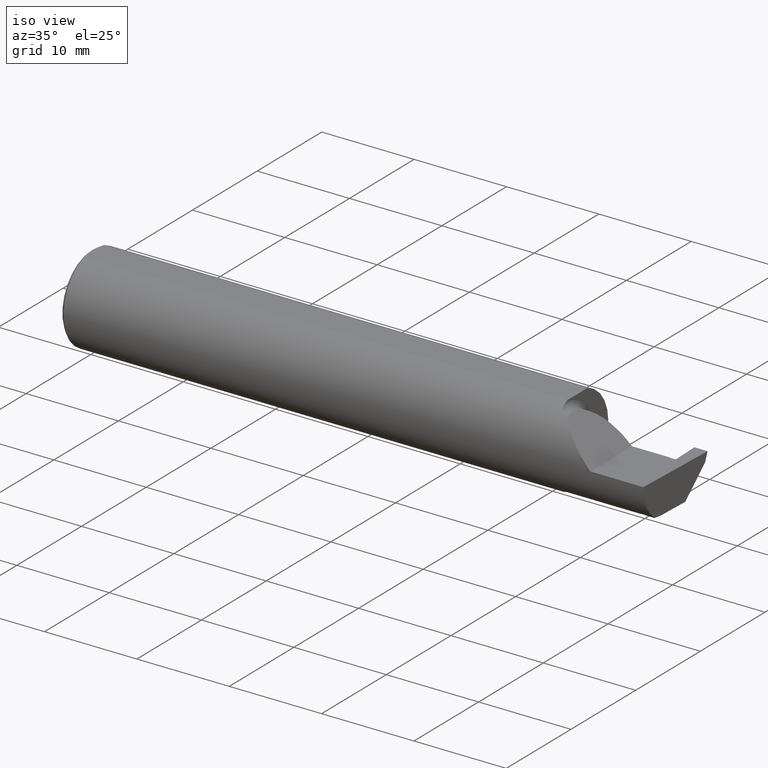
[diagram: clean part render]
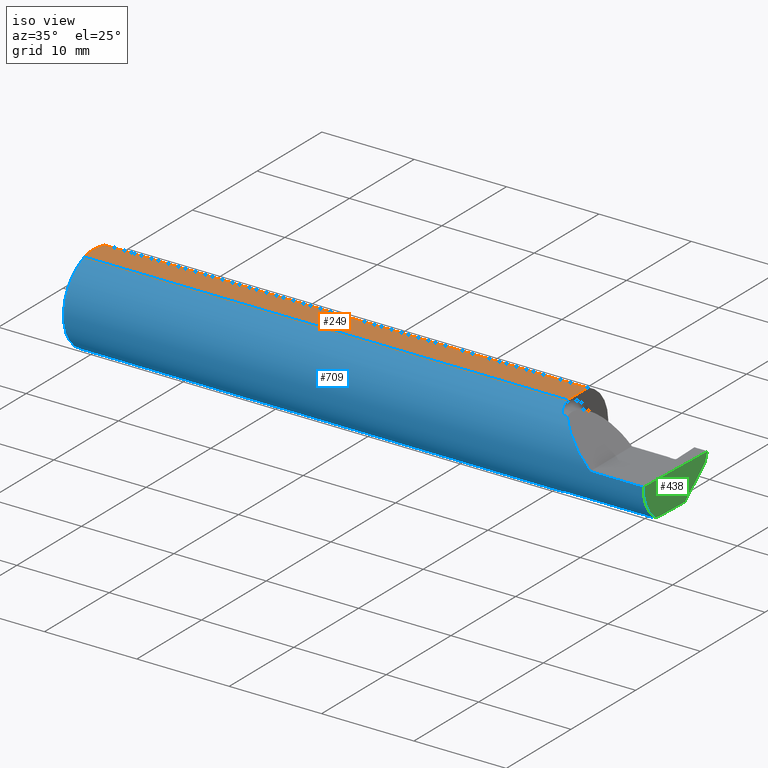
[diagram: same view with three faces highlighted in distinct colors, each labeled with its STEP entity id]
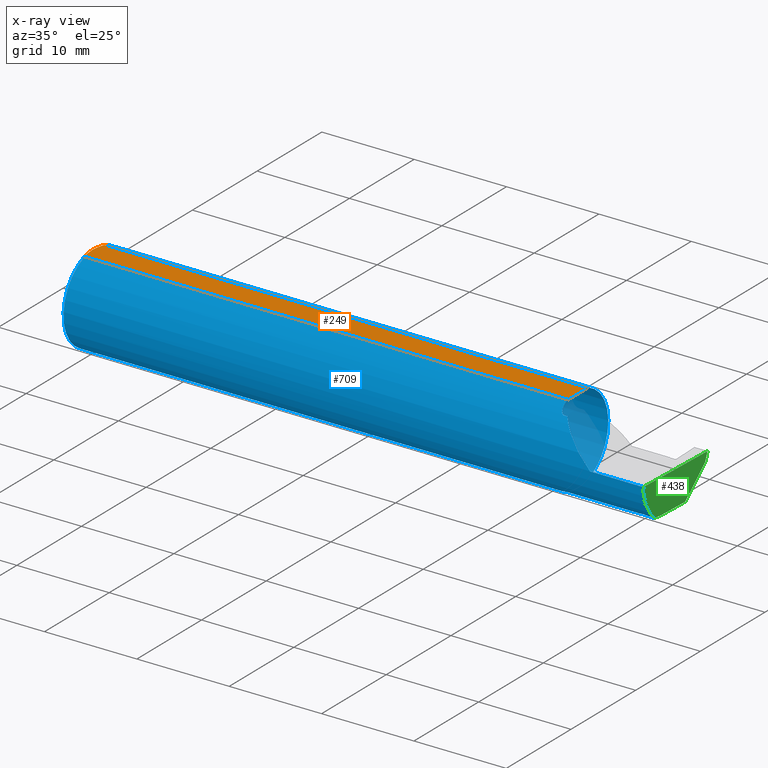
[diagram: x-ray of the same camera — body ghosted, the three highlighted faces saturated]
A machine part, iso view with three faces highlighted in distinct colors.
The next image is the same camera in x-ray (body ghosted, the three faces saturated) — at least one of them is partly hidden behind the body in this view.
Their STEP definitions:

[orange] entity #249 — the highlighted planar face has unit normal (0, -0, 1).
#20 = CARTESIAN_POINT ( 'NONE',  ( 2.075000000000000178, -0.1873500000000000165, 0.1773499999999999799 ) ) ;
#25 = CARTESIAN_POINT ( 'NONE',  ( 0.01186375298701897348, -0.05066077215909271098, 0.1773499999999999799 ) ) ;
#26 = PLANE ( 'NONE',  #677 ) ;
#59 = VERTEX_POINT ( 'NONE', #618 ) ;
#86 = ORIENTED_EDGE ( 'NONE', *, *, #107, .T. ) ;
#107 = EDGE_CURVE ( 'NONE', #681, #172, #858, .T. ) ;
#111 = DIRECTION ( 'NONE',  ( -0.000000000000000000, 1.000000000000000000, 0.000000000000000000 ) ) ;
#151 = CARTESIAN_POINT ( 'NONE',  ( 2.075000000000000178, -0.06039039658753699025, 0.1773499999999999799 ) ) ;
#167 = CARTESIAN_POINT ( 'NONE',  ( 0.01499999999999999944, -0.06039039658753697637, 0.1773499999999999799 ) ) ;
#172 = VERTEX_POINT ( 'NONE', #151 ) ;
#175 = DIRECTION ( 'NONE',  ( -1.000000000000000000, -0.000000000000000000, -0.000000000000000000 ) ) ;
#207 = DIRECTION ( 'NONE',  ( 1.000000000000000000, 0.000000000000000000, -0.000000000000000000 ) ) ;
#217 = CARTESIAN_POINT ( 'NONE',  ( 0.000000000000000000, -0.06039039658753697637, 0.1773499999999999799 ) ) ;
#226 = EDGE_CURVE ( 'NONE', #59, #420, #273, .T. ) ;
#249 = ADVANCED_FACE ( 'NONE', ( #908 ), #26, .T. ) ;
#262 = VECTOR ( 'NONE', #779, 39.37007874015748143 ) ;
#266 = CARTESIAN_POINT ( 'NONE',  ( 0.009318557230853204490, -0.04061090184993776386, 0.1773499999999999799 ) ) ;
#273 = B_SPLINE_CURVE_WITH_KNOTS ( 'NONE', 3,
 ( #977, #898, #743, #984, #913, #987 ),
 .UNSPECIFIED., .F., .F.,
 ( 4, 2, 4 ),
 ( 0.004207325536406422359, 0.004979129323161655095, 0.005750933109916887831 ),
 .UNSPECIFIED. ) ;
#344 = CARTESIAN_POINT ( 'NONE',  ( 0.005896899252109314912, -0.02043863390046160924, 0.1773500000000000354 ) ) ;
#350 = CARTESIAN_POINT ( 'NONE',  ( 0.01499999999999999944, -0.06039039658753697637, 0.1773499999999999799 ) ) ;
#420 = VERTEX_POINT ( 'NONE', #559 ) ;
#422 = CARTESIAN_POINT ( 'NONE',  ( 0.004999999999999835305, 2.941982542510190671E-17, 0.1773499999999999799 ) ) ;
#428 = B_SPLINE_CURVE_WITH_KNOTS ( 'NONE', 3,
 ( #422, #735, #344, #266, #25, #350 ),
 .UNSPECIFIED., .F., .F.,
 ( 4, 2, 4 ),
 ( 0.005750933109916887831, 0.006521788775031543001, 0.007292644440146199038 ),
 .UNSPECIFIED. ) ;
#429 = LINE ( 'NONE', #20, #479 ) ;
#435 = DIRECTION ( 'NONE',  ( 0.000000000000000000, -0.000000000000000000, 1.000000000000000000 ) ) ;
#469 = EDGE_CURVE ( 'NONE', #862, #59, #732, .T. ) ;
#479 = VECTOR ( 'NONE', #111, 39.37007874015748143 ) ;
#528 = EDGE_CURVE ( 'NONE', #172, #862, #429, .T. ) ;
#545 = EDGE_CURVE ( 'NONE', #420, #681, #428, .T. ) ;
#559 = CARTESIAN_POINT ( 'NONE',  ( 0.004999999999999835305, 2.941982542510190671E-17, 0.1773499999999999799 ) ) ;
#599 = ORIENTED_EDGE ( 'NONE', *, *, #469, .T. ) ;
#618 = CARTESIAN_POINT ( 'NONE',  ( 0.01499999999999756042, 0.06039039658754215278, 0.1773499999999999799 ) ) ;
#677 = AXIS2_PLACEMENT_3D ( 'NONE', #828, #435, #207 ) ;
#681 = VERTEX_POINT ( 'NONE', #167 ) ;
#698 = CARTESIAN_POINT ( 'NONE',  ( 2.075000000000000178, 0.06039039658754216666, 0.1773499999999999799 ) ) ;
#732 = LINE ( 'NONE', #976, #964 ) ;
#735 = CARTESIAN_POINT ( 'NONE',  ( 0.004999999999999833571, -0.01026662907944655458, 0.1773499999999999521 ) ) ;
#743 = CARTESIAN_POINT ( 'NONE',  ( 0.009346310357820472939, 0.04072930668827419443, 0.1773500000000000354 ) ) ;
#779 = DIRECTION ( 'NONE',  ( 1.000000000000000000, 0.000000000000000000, 0.000000000000000000 ) ) ;
#828 = CARTESIAN_POINT ( 'NONE',  ( 2.500000000000000000, -0.1873500000000000165, 0.1773499999999999799 ) ) ;
#858 = LINE ( 'NONE', #217, #262 ) ;
#862 = VERTEX_POINT ( 'NONE', #698 ) ;
#898 = CARTESIAN_POINT ( 'NONE',  ( 0.01185291896084217714, 0.05062716160312498437, 0.1773499999999999521 ) ) ;
#908 = FACE_OUTER_BOUND ( 'NONE', #1039, .T. ) ;
#913 = CARTESIAN_POINT ( 'NONE',  ( 0.004999999999999839642, 0.01027925662263861305, 0.1773499999999999799 ) ) ;
#919 = ORIENTED_EDGE ( 'NONE', *, *, #545, .T. ) ;
#953 = ORIENTED_EDGE ( 'NONE', *, *, #528, .T. ) ;
#964 = VECTOR ( 'NONE', #175, 39.37007874015748143 ) ;
#976 = CARTESIAN_POINT ( 'NONE',  ( 0.000000000000000000, 0.06039039658753697637, 0.1773499999999999799 ) ) ;
#977 = CARTESIAN_POINT ( 'NONE',  ( 0.01499999999999756042, 0.06039039658754215278, 0.1773499999999999799 ) ) ;
#984 = CARTESIAN_POINT ( 'NONE',  ( 0.005916828623699125177, 0.02060071390057613763, 0.1773499999999999799 ) ) ;
#985 = ORIENTED_EDGE ( 'NONE', *, *, #226, .T. ) ;
#987 = CARTESIAN_POINT ( 'NONE',  ( 0.004999999999999835305, 2.941982542510190671E-17, 0.1773499999999999799 ) ) ;
#1039 = EDGE_LOOP ( 'NONE', ( #86, #953, #599, #985, #919 ) ) ;

[blue] entity #709 — the highlighted cylindrical surface (partial cylindrical patch) has radius 4.7587 mm, axis along (-1, -0, -0).
#14 = LINE ( 'NONE', #797, #877 ) ;
#15 = CARTESIAN_POINT ( 'NONE',  ( 2.076062863587533780, -0.08334999999998812803, 0.1677879614275171183 ) ) ;
#17 = EDGE_CURVE ( 'NONE', #670, #356, #41, .T. ) ;
#27 = ORIENTED_EDGE ( 'NONE', *, *, #847, .T. ) ;
#28 = EDGE_CURVE ( 'NONE', #172, #521, #196, .T. ) ;
#37 = VECTOR ( 'NONE', #938, 39.37007874015748143 ) ;
#41 = B_SPLINE_CURVE_WITH_KNOTS ( 'NONE', 3,
 ( #68, #225, #684, #146 ),
 .UNSPECIFIED., .F., .F.,
 ( 4, 4 ),
 ( 0.001278539404338873775, 0.001694873732696217669 ),
 .UNSPECIFIED. ) ;
#44 = CARTESIAN_POINT ( 'NONE',  ( 2.086340974786207170, -0.1102890168945986904, -0.1514792188789465255 ) ) ;
#48 = ORIENTED_EDGE ( 'NONE', *, *, #782, .F. ) ;
#51 = CARTESIAN_POINT ( 'NONE',  ( 2.485002117657001186, -0.1623470442677541481, -0.1099340280425338545 ) ) ;
#56 = VERTEX_POINT ( 'NONE', #612 ) ;
#58 = CIRCLE ( 'NONE', #651, 0.1873499999999999888 ) ;
#59 = VERTEX_POINT ( 'NONE', #618 ) ;
#61 = EDGE_CURVE ( 'NONE', #820, #681, #58, .T. ) ;
#64 = CARTESIAN_POINT ( 'NONE',  ( 0.01499999999999999944, 0.000000000000000000, -0.1873499999999999888 ) ) ;
#68 = CARTESIAN_POINT ( 'NONE',  ( 2.076062863587535556, -0.08334999999999985476, -0.1677879614275112896 ) ) ;
#70 = CARTESIAN_POINT ( 'NONE',  ( 2.435367547408618716, -0.1203345206023109792, -0.1435953538642946725 ) ) ;
#76 = DIRECTION ( 'NONE',  ( 0.000000000000000000, 0.000000000000000000, 1.000000000000000000 ) ) ;
#79 = EDGE_CURVE ( 'NONE', #356, #862, #449, .T. ) ;
#98 = ORIENTED_EDGE ( 'NONE', *, *, #818, .F. ) ;
#104 = B_SPLINE_CURVE_WITH_KNOTS ( 'NONE', 3,
 ( #1020, #624, #223, #374, #204, #293 ),
 .UNSPECIFIED., .F., .F.,
 ( 4, 2, 4 ),
 ( 0.0002908273715182690153, 0.0003847775289442874509, 0.0004787276863703058324 ),
 .UNSPECIFIED. ) ;
#107 = EDGE_CURVE ( 'NONE', #681, #172, #858, .T. ) ;
#116 = VERTEX_POINT ( 'NONE', #385 ) ;
#125 = CARTESIAN_POINT ( 'NONE',  ( 2.077380638915944822, -0.09060738690120602457, -0.1640321561807271400 ) ) ;
#134 = DIRECTION ( 'NONE',  ( 1.000000000000000000, 0.000000000000000000, 0.000000000000000000 ) ) ;
#143 = CARTESIAN_POINT ( 'NONE',  ( 2.485494735025390867, -0.1873500000000000443, -0.05781030015605120170 ) ) ;
#146 = CARTESIAN_POINT ( 'NONE',  ( 2.075000000000000178, -0.06851976604679065053, -0.1743704796142198643 ) ) ;
#147 = CARTESIAN_POINT ( 'NONE',  ( 2.487009473749072441, -0.1873499999999999055, 0.000000000000000000 ) ) ;
#151 = CARTESIAN_POINT ( 'NONE',  ( 2.075000000000000178, -0.06039039658753699025, 0.1773499999999999799 ) ) ;
#153 = ORIENTED_EDGE ( 'NONE', *, *, #439, .F. ) ;
#154 = CARTESIAN_POINT ( 'NONE',  ( 2.443118891017510119, -0.1208001381097771193, -0.1432039152493872758 ) ) ;
#167 = CARTESIAN_POINT ( 'NONE',  ( 0.01499999999999999944, -0.06039039658753697637, 0.1773499999999999799 ) ) ;
#172 = VERTEX_POINT ( 'NONE', #151 ) ;
#174 = CARTESIAN_POINT ( 'NONE',  ( 2.433253561410101184, -0.1202072007493248940, -0.1437020493322185011 ) ) ;
#175 = DIRECTION ( 'NONE',  ( -1.000000000000000000, -0.000000000000000000, -0.000000000000000000 ) ) ;
#186 = EDGE_CURVE ( 'NONE', #59, #820, #194, .T. ) ;
#194 = CIRCLE ( 'NONE', #827, 0.1873499999999999888 ) ;
#196 = CIRCLE ( 'NONE', #564, 0.1873499999999999888 ) ;
#204 = CARTESIAN_POINT ( 'NONE',  ( 2.447211118897092419, -0.1210449020109280321, -0.1429970773740728562 ) ) ;
#217 = CARTESIAN_POINT ( 'NONE',  ( 0.000000000000000000, -0.06039039658753697637, 0.1773499999999999799 ) ) ;
#220 = CARTESIAN_POINT ( 'NONE',  ( 2.075000000000000178, -0.06851976604679065053, -0.1743704796142198643 ) ) ;
#223 = CARTESIAN_POINT ( 'NONE',  ( 2.450071708900371625, -0.1190227893687516025, -0.1446874979439383702 ) ) ;
#224 = CARTESIAN_POINT ( 'NONE',  ( 3.749399456654646757E-32, -0.1873499999999999888, 3.061616997868384127E-16 ) ) ;
#225 = CARTESIAN_POINT ( 'NONE',  ( 2.075346246588685162, -0.07856197451716391555, -0.1701664510438047062 ) ) ;
#230 = B_SPLINE_CURVE_WITH_KNOTS ( 'NONE', 3,
 ( #1002, #364, #1009, #372, #766, #44, #305, #611, #285, #125, #300, #939 ),
 .UNSPECIFIED., .F., .F.,
 ( 4, 2, 2, 2, 2, 4 ),
 ( 1.967976973658110826E-07, 0.0001599896235275542170, 0.0003197824493577425937, 0.0006393681010181188592, 0.0009589537526784962631, 0.001278539404338873775 ),
 .UNSPECIFIED. ) ;
#252 = ORIENTED_EDGE ( 'NONE', *, *, #79, .F. ) ;
#258 = CARTESIAN_POINT ( 'NONE',  ( 2.074999999999999734, -0.07360907839729495528, 0.1723706084642000758 ) ) ;
#260 = DIRECTION ( 'NONE',  ( 0.000000000000000000, 0.000000000000000000, 1.000000000000000000 ) ) ;
#262 = VECTOR ( 'NONE', #779, 39.37007874015748143 ) ;
#263 = EDGE_CURVE ( 'NONE', #785, #670, #230, .T. ) ;
#275 = CARTESIAN_POINT ( 'NONE',  ( 2.079075010165367665, -0.09778159395695856793, 0.1599914159748310749 ) ) ;
#276 = EDGE_CURVE ( 'NONE', #1012, #279, #849, .T. ) ;
#279 = VERTEX_POINT ( 'NONE', #922 ) ;
#285 = CARTESIAN_POINT ( 'NONE',  ( 2.079475235432781677, -0.09757364237049405420, -0.1599863467203318512 ) ) ;
#287 = B_SPLINE_CURVE_WITH_KNOTS ( 'NONE', 3,
 ( #654, #258, #872, #635 ),
 .UNSPECIFIED., .F., .F.,
 ( 4, 4 ),
 ( 4.423516731080786679E-05, 0.0004561457252213464405 ),
 .UNSPECIFIED. ) ;
#293 = CARTESIAN_POINT ( 'NONE',  ( 2.445937596161523064, -0.1209687695218951142, -0.1430614528807763741 ) ) ;
#300 = CARTESIAN_POINT ( 'NONE',  ( 2.076612951569643872, -0.08702537370779848958, -0.1659621904011593096 ) ) ;
#301 = CARTESIAN_POINT ( 'NONE',  ( 2.075000000000000178, 0.000000000000000000, 0.000000000000000000 ) ) ;
#305 = CARTESIAN_POINT ( 'NONE',  ( 2.084228130464466755, -0.1072797540790367682, -0.1536407449207396192 ) ) ;
#311 = DIRECTION ( 'NONE',  ( -1.000000000000000000, -0.000000000000000000, -0.000000000000000000 ) ) ;
#319 =( BOUNDED_CURVE ( )  B_SPLINE_CURVE ( 3, ( #555, #800, #1030, #391 ),
 .UNSPECIFIED., .F., .F. ) 
 B_SPLINE_CURVE_WITH_KNOTS ( ( 4, 4 ),
 ( 4.712388980384688786, 5.606916381293135743 ),
 .UNSPECIFIED. ) 
 CURVE ( )  GEOMETRIC_REPRESENTATION_ITEM ( )  RATIONAL_B_SPLINE_CURVE ( ( 1.000000000000000000, 0.9344226172588803170, 0.9344226172588803170, 1.000000000000000000 ) ) 
 REPRESENTATION_ITEM ( '' )  );
#356 = VERTEX_POINT ( 'NONE', #220 ) ;
#361 = AXIS2_PLACEMENT_3D ( 'NONE', #557, #478, #76 ) ;
#364 = CARTESIAN_POINT ( 'NONE',  ( 2.097868998470238555, -0.1172600179964006228, -0.1461167706989303372 ) ) ;
#365 = ORIENTED_EDGE ( 'NONE', *, *, #634, .F. ) ;
#372 = CARTESIAN_POINT ( 'NONE',  ( 2.092163414264744503, -0.1151183835841406711, -0.1478135984872520903 ) ) ;
#374 = CARTESIAN_POINT ( 'NONE',  ( 2.448382007790372850, -0.1204607716139897561, -0.1434925048654373259 ) ) ;
#376 = VECTOR ( 'NONE', #853, 39.37007874015748143 ) ;
#385 = CARTESIAN_POINT ( 'NONE',  ( 2.445937596161523064, -0.1209687695218951142, -0.1430614528807763741 ) ) ;
#386 = CARTESIAN_POINT ( 'NONE',  ( 2.487009473749072441, -0.1873499999999999055, 0.000000000000000000 ) ) ;
#390 = DIRECTION ( 'NONE',  ( -1.000000000000000000, -0.000000000000000000, -0.000000000000000000 ) ) ;
#391 = CARTESIAN_POINT ( 'NONE',  ( 2.113883229301070532, -0.1172600179964009143, 0.1461167706989301707 ) ) ;
#393 = FACE_OUTER_BOUND ( 'NONE', #929, .T. ) ;
#394 = CARTESIAN_POINT ( 'NONE',  ( 2.269499999999999851, -0.1172600179964007061, -0.1461167706989303094 ) ) ;
#398 = CARTESIAN_POINT ( 'NONE',  ( 2.429025632386764499, -0.1199517158065506600, -0.1439152819372025438 ) ) ;
#415 = CARTESIAN_POINT ( 'NONE',  ( 2.431139589740697549, -0.1200795990371845007, -0.1438086927499326040 ) ) ;
#418 = EDGE_CURVE ( 'NONE', #556, #785, #880, .T. ) ;
#434 = CARTESIAN_POINT ( 'NONE',  ( 2.076062863587533780, -0.08334999999998812803, 0.1677879614275171183 ) ) ;
#439 = EDGE_CURVE ( 'NONE', #931, #556, #626, .T. ) ;
#449 = CIRCLE ( 'NONE', #688, 0.1873499999999999888 ) ;
#466 = DIRECTION ( 'NONE',  ( 0.000000000000000000, 0.000000000000000000, -1.000000000000000000 ) ) ;
#469 = EDGE_CURVE ( 'NONE', #862, #59, #732, .T. ) ;
#478 = DIRECTION ( 'NONE',  ( -1.000000000000000000, -0.000000000000000000, -0.000000000000000000 ) ) ;
#501 = VERTEX_POINT ( 'NONE', #434 ) ;
#503 = EDGE_CURVE ( 'NONE', #501, #56, #846, .T. ) ;
#505 = DIRECTION ( 'NONE',  ( -1.000000000000000000, -0.000000000000000000, -0.000000000000000000 ) ) ;
#521 = VERTEX_POINT ( 'NONE', #826 ) ;
#535 = CARTESIAN_POINT ( 'NONE',  ( 0.01499999999999999944, 0.000000000000000000, 0.000000000000000000 ) ) ;
#536 = CARTESIAN_POINT ( 'NONE',  ( 2.100000000000000089, -0.1172600179964007061, -0.1461167706989303094 ) ) ;
#542 = ORIENTED_EDGE ( 'NONE', *, *, #263, .F. ) ;
#550 = DIRECTION ( 'NONE',  ( 0.000000000000000000, 0.000000000000000000, 1.000000000000000000 ) ) ;
#555 = CARTESIAN_POINT ( 'NONE',  ( 2.260000000000000231, -0.1873499999999999888, 2.939152317953647352E-17 ) ) ;
#556 = VERTEX_POINT ( 'NONE', #668 ) ;
#557 = CARTESIAN_POINT ( 'NONE',  ( 0.000000000000000000, 0.000000000000000000, 0.000000000000000000 ) ) ;
#563 = DIRECTION ( 'NONE',  ( 1.000000000000000000, 0.000000000000000000, 0.000000000000000000 ) ) ;
#564 = AXIS2_PLACEMENT_3D ( 'NONE', #301, #623, #466 ) ;
#570 = CARTESIAN_POINT ( 'NONE',  ( 2.451191799768008828, -0.1172600179964005812, -0.1461167706989303372 ) ) ;
#581 = CARTESIAN_POINT ( 'NONE',  ( 2.086319809340846820, -0.1102629523538395662, 0.1514982751257170079 ) ) ;
#590 = CARTESIAN_POINT ( 'NONE',  ( 2.091924463282975211, -0.1152182125075826846, 0.1477647100440766526 ) ) ;
#591 = EDGE_CURVE ( 'NONE', #56, #1021, #14, .T. ) ;
#595 = CARTESIAN_POINT ( 'NONE',  ( 2.095724556588812515, -0.1172600179964061046, 0.1461167706989260906 ) ) ;
#611 = CARTESIAN_POINT ( 'NONE',  ( 2.080806801261507299, -0.1009700360460131785, -0.1578590382459147679 ) ) ;
#612 = CARTESIAN_POINT ( 'NONE',  ( 2.100000000000000089, -0.1172600179964007616, 0.1461167706989303094 ) ) ;
#618 = CARTESIAN_POINT ( 'NONE',  ( 0.01499999999999756042, 0.06039039658754215278, 0.1773499999999999799 ) ) ;
#619 = LINE ( 'NONE', #924, #37 ) ;
#623 = DIRECTION ( 'NONE',  ( 1.000000000000000000, 0.000000000000000000, 0.000000000000000000 ) ) ;
#624 = CARTESIAN_POINT ( 'NONE',  ( 2.450688798581004413, -0.1181608706206835058, -0.1453938283944282706 ) ) ;
#626 = B_SPLINE_CURVE_WITH_KNOTS ( 'NONE', 3,
 ( #398, #713, #813, #907 ),
 .UNSPECIFIED., .F., .F.,
 ( 4, 4 ),
 ( 0.000000000000000000, 9.500698411397847775E-05 ),
 .UNSPECIFIED. ) ;
#628 = CARTESIAN_POINT ( 'NONE',  ( 2.075000000000000178, 0.000000000000000000, 0.000000000000000000 ) ) ;
#634 = EDGE_CURVE ( 'NONE', #521, #501, #287, .T. ) ;
#635 = CARTESIAN_POINT ( 'NONE',  ( 2.076062863587533780, -0.08334999999998812803, 0.1677879614275171183 ) ) ;
#651 = AXIS2_PLACEMENT_3D ( 'NONE', #535, #390, #550 ) ;
#652 = CARTESIAN_POINT ( 'NONE',  ( 2.113883229301070532, -0.1172600179964009143, 0.1461167706989301707 ) ) ;
#654 = CARTESIAN_POINT ( 'NONE',  ( 2.075000000000000178, -0.06851976604679065053, 0.1743704796142198643 ) ) ;
#658 = CARTESIAN_POINT ( 'NONE',  ( 2.444528240385133167, -0.1208845165662049415, -0.1431326948273189126 ) ) ;
#662 = VERTEX_POINT ( 'NONE', #570 ) ;
#665 = ORIENTED_EDGE ( 'NONE', *, *, #61, .F. ) ;
#668 = CARTESIAN_POINT ( 'NONE',  ( 2.427647260851356847, -0.1172600179964005812, -0.1461167706989303650 ) ) ;
#670 = VERTEX_POINT ( 'NONE', #948 ) ;
#674 = ORIENTED_EDGE ( 'NONE', *, *, #17, .F. ) ;
#678 = ORIENTED_EDGE ( 'NONE', *, *, #469, .F. ) ;
#681 = VERTEX_POINT ( 'NONE', #167 ) ;
#684 = CARTESIAN_POINT ( 'NONE',  ( 2.075000000000000178, -0.07359296612170559970, -0.1723769398647691520 ) ) ;
#688 = AXIS2_PLACEMENT_3D ( 'NONE', #628, #134, #1003 ) ;
#698 = CARTESIAN_POINT ( 'NONE',  ( 2.075000000000000178, 0.06039039658754216666, 0.1773499999999999799 ) ) ;
#699 = VERTEX_POINT ( 'NONE', #1033 ) ;
#702 = EDGE_CURVE ( 'NONE', #116, #931, #943, .T. ) ;
#705 = CYLINDRICAL_SURFACE ( 'NONE', #361, 0.1873499999999999888 ) ;
#709 = ADVANCED_FACE ( 'NONE', ( #393 ), #705, .T. ) ;
#713 = CARTESIAN_POINT ( 'NONE',  ( 2.428567406358996372, -0.1190609576996094487, -0.1446577184724887610 ) ) ;
#715 = CARTESIAN_POINT ( 'NONE',  ( 2.429025632386764499, -0.1199517158065506600, -0.1439152819372025438 ) ) ;
#722 = CARTESIAN_POINT ( 'NONE',  ( 2.437481533252272570, -0.1204618404459700531, -0.1434886584041870083 ) ) ;
#730 = CARTESIAN_POINT ( 'NONE',  ( 2.429025632386764499, -0.1199517158065506600, -0.1439152819372025438 ) ) ;
#732 = LINE ( 'NONE', #976, #964 ) ;
#758 = ORIENTED_EDGE ( 'NONE', *, *, #107, .F. ) ;
#766 = CARTESIAN_POINT ( 'NONE',  ( 2.090551048069661189, -0.1140002044565610884, -0.1486821290834930143 ) ) ;
#770 = CARTESIAN_POINT ( 'NONE',  ( 2.485628535317038867, -0.1172600179964007061, -0.1461167706989303094 ) ) ;
#771 = ORIENTED_EDGE ( 'NONE', *, *, #881, .T. ) ;
#779 = DIRECTION ( 'NONE',  ( 1.000000000000000000, 0.000000000000000000, 0.000000000000000000 ) ) ;
#782 = EDGE_CURVE ( 'NONE', #699, #662, #619, .T. ) ;
#785 = VERTEX_POINT ( 'NONE', #536 ) ;
#786 = CARTESIAN_POINT ( 'NONE',  ( 2.441709548055352119, -0.1207156342425665246, -0.1432751135034094903 ) ) ;
#797 = CARTESIAN_POINT ( 'NONE',  ( 2.269499999999999851, -0.1172600179964007061, 0.1461167706989303094 ) ) ;
#800 = CARTESIAN_POINT ( 'NONE',  ( 2.202189699843949189, -0.1873500000000000443, 0.05781030015605096578 ) ) ;
#804 = CARTESIAN_POINT ( 'NONE',  ( 2.439595533463757793, -0.1205888784328551372, -0.1433819108919376362 ) ) ;
#813 = CARTESIAN_POINT ( 'NONE',  ( 2.428107891671646978, -0.1181636587484186512, -0.1453915908969331539 ) ) ;
#818 = EDGE_CURVE ( 'NONE', #662, #116, #104, .T. ) ;
#820 = VERTEX_POINT ( 'NONE', #64 ) ;
#822 = CARTESIAN_POINT ( 'NONE',  ( 2.077158970028690099, -0.09067355718685699006, 0.1641499263364886996 ) ) ;
#826 = CARTESIAN_POINT ( 'NONE',  ( 2.075000000000000178, -0.06851976604679065053, 0.1743704796142198643 ) ) ;
#827 = AXIS2_PLACEMENT_3D ( 'NONE', #839, #505, #260 ) ;
#839 = CARTESIAN_POINT ( 'NONE',  ( 0.01499999999999999944, 0.000000000000000000, 0.000000000000000000 ) ) ;
#846 = B_SPLINE_CURVE_WITH_KNOTS ( 'NONE', 3,
 ( #15, #822, #275, #903, #581, #590, #595, #897 ),
 .UNSPECIFIED., .F., .F.,
 ( 4, 2, 2, 4 ),
 ( 0.0004561457252213464405, 0.001084815134961806529, 0.001399149839832032182, 0.001713484544702258052 ),
 .UNSPECIFIED. ) ;
#847 = EDGE_CURVE ( 'NONE', #699, #1012, #997, .T. ) ;
#849 = LINE ( 'NONE', #224, #376 ) ;
#853 = DIRECTION ( 'NONE',  ( -1.000000000000000000, -0.000000000000000000, -0.000000000000000000 ) ) ;
#858 = LINE ( 'NONE', #217, #262 ) ;
#860 = VECTOR ( 'NONE', #311, 39.37007874015748143 ) ;
#862 = VERTEX_POINT ( 'NONE', #698 ) ;
#872 = CARTESIAN_POINT ( 'NONE',  ( 2.075344683557281300, -0.07855153123406179161, 0.1701716388274757685 ) ) ;
#876 = ORIENTED_EDGE ( 'NONE', *, *, #418, .F. ) ;
#877 = VECTOR ( 'NONE', #563, 39.37007874015748143 ) ;
#880 = LINE ( 'NONE', #394, #860 ) ;
#881 = EDGE_CURVE ( 'NONE', #279, #1021, #319, .T. ) ;
#884 = ORIENTED_EDGE ( 'NONE', *, *, #702, .F. ) ;
#888 = ORIENTED_EDGE ( 'NONE', *, *, #276, .T. ) ;
#893 = ORIENTED_EDGE ( 'NONE', *, *, #28, .F. ) ;
#897 = CARTESIAN_POINT ( 'NONE',  ( 2.100000000000000089, -0.1172600179964007616, 0.1461167706989303094 ) ) ;
#903 = CARTESIAN_POINT ( 'NONE',  ( 2.084249444250374061, -0.1073163636891284328, 0.1536158790136666064 ) ) ;
#907 = CARTESIAN_POINT ( 'NONE',  ( 2.427647260851356847, -0.1172600179964005812, -0.1461167706989303650 ) ) ;
#909 = ORIENTED_EDGE ( 'NONE', *, *, #186, .F. ) ;
#922 = CARTESIAN_POINT ( 'NONE',  ( 2.260000000000000231, -0.1873499999999999888, 2.939152317953647352E-17 ) ) ;
#924 = CARTESIAN_POINT ( 'NONE',  ( 2.269499999999999851, -0.1172600179964007061, -0.1461167706989303094 ) ) ;
#929 = EDGE_LOOP ( 'NONE', ( #48, #27, #888, #771, #968, #974, #365, #893, #758, #665, #909, #678, #252, #674, #542, #876, #153, #884, #98 ) ) ;
#931 = VERTEX_POINT ( 'NONE', #715 ) ;
#938 = DIRECTION ( 'NONE',  ( -1.000000000000000000, -0.000000000000000000, -0.000000000000000000 ) ) ;
#939 = CARTESIAN_POINT ( 'NONE',  ( 2.076062863587535556, -0.08334999999999985476, -0.1677879614275112896 ) ) ;
#943 = B_SPLINE_CURVE_WITH_KNOTS ( 'NONE', 3,
 ( #969, #658, #154, #786, #804, #722, #70, #174, #415, #730 ),
 .UNSPECIFIED., .F., .F.,
 ( 4, 3, 3, 4 ),
 ( 0.000000000000000000, 0.0001077215141514192961, 0.0002693037975400756814, 0.0004308860927661897029 ),
 .UNSPECIFIED. ) ;
#948 = CARTESIAN_POINT ( 'NONE',  ( 2.076062863587535556, -0.08334999999999985476, -0.1677879614275112896 ) ) ;
#964 = VECTOR ( 'NONE', #175, 39.37007874015748143 ) ;
#968 = ORIENTED_EDGE ( 'NONE', *, *, #591, .F. ) ;
#969 = CARTESIAN_POINT ( 'NONE',  ( 2.445937596161523064, -0.1209687695218951142, -0.1430614528807763741 ) ) ;
#974 = ORIENTED_EDGE ( 'NONE', *, *, #503, .F. ) ;
#976 = CARTESIAN_POINT ( 'NONE',  ( 0.000000000000000000, 0.06039039658753697637, 0.1773499999999999799 ) ) ;
#997 =( BOUNDED_CURVE ( )  B_SPLINE_CURVE ( 3, ( #770, #51, #143, #386 ),
 .UNSPECIFIED., .F., .T. ) 
 B_SPLINE_CURVE_WITH_KNOTS ( ( 4, 4 ),
 ( 6.032366188922103412, 6.926893589830550368 ),
 .UNSPECIFIED. ) 
 CURVE ( )  GEOMETRIC_REPRESENTATION_ITEM ( )  RATIONAL_B_SPLINE_CURVE ( ( 1.000000000000000000, 0.9344226172588803170, 0.9344226172588803170, 1.000000000000000000 ) ) 
 REPRESENTATION_ITEM ( '' )  );
#1002 = CARTESIAN_POINT ( 'NONE',  ( 2.100000000000000089, -0.1172600179964007061, -0.1461167706989303094 ) ) ;
#1003 = DIRECTION ( 'NONE',  ( 0.000000000000000000, 0.000000000000000000, -1.000000000000000000 ) ) ;
#1009 = CARTESIAN_POINT ( 'NONE',  ( 2.095804171164107554, -0.1167508198888949494, -0.1465276362740037530 ) ) ;
#1012 = VERTEX_POINT ( 'NONE', #147 ) ;
#1020 = CARTESIAN_POINT ( 'NONE',  ( 2.451191799768008828, -0.1172600179964005812, -0.1461167706989303372 ) ) ;
#1021 = VERTEX_POINT ( 'NONE', #652 ) ;
#1030 = CARTESIAN_POINT ( 'NONE',  ( 2.150065971957467070, -0.1623470442677542591, 0.1099340280425335908 ) ) ;
#1033 = CARTESIAN_POINT ( 'NONE',  ( 2.485628535317038867, -0.1172600179964007061, -0.1461167706989303094 ) ) ;

[green] entity #438 — the highlighted planar face has unit normal (-0.999, 0.0349, 0.0262).
#2 = DIRECTION ( 'NONE',  ( -0.04317993108638582683, -0.7064472710512009757, -0.7064472710511987552 ) ) ;
#9 = VECTOR ( 'NONE', #85, 39.37007874015748854 ) ;
#39 = CARTESIAN_POINT ( 'NONE',  ( 2.499872637845352408, 0.1835478877661963770, -0.003391952678096913417 ) ) ;
#51 = CARTESIAN_POINT ( 'NONE',  ( 2.485002117657001186, -0.1623470442677541481, -0.1099340280425338545 ) ) ;
#66 = CARTESIAN_POINT ( 'NONE',  ( 2.500000000000000000, 0.1846500000000000363, 0.000000000000000000 ) ) ;
#77 = DIRECTION ( 'NONE',  ( -0.03489949670249477970, -0.9993908270190959842, 0.000000000000000000 ) ) ;
#85 = DIRECTION ( 'NONE',  ( -0.03489949670249478664, -0.9993908270190959842, 0.000000000000000000 ) ) ;
#121 = CARTESIAN_POINT ( 'NONE',  ( 2.486311922989707490, -0.09477667630339423055, -0.1499999999999999944 ) ) ;
#132 = VERTEX_POINT ( 'NONE', #851 ) ;
#137 = ORIENTED_EDGE ( 'NONE', *, *, #847, .F. ) ;
#143 = CARTESIAN_POINT ( 'NONE',  ( 2.485494735025390867, -0.1873500000000000443, -0.05781030015605120170 ) ) ;
#147 = CARTESIAN_POINT ( 'NONE',  ( 2.487009473749072441, -0.1873499999999999055, 0.000000000000000000 ) ) ;
#155 = PLANE ( 'NONE',  #1013 ) ;
#171 = DIRECTION ( 'NONE',  ( -0.03489949670249477970, -0.9993908270190959842, 0.000000000000000000 ) ) ;
#232 = LINE ( 'NONE', #400, #982 ) ;
#308 = CARTESIAN_POINT ( 'NONE',  ( 2.485949549028435790, -0.1061291577212409576, -0.1486999626928446061 ) ) ;
#315 = DIRECTION ( 'NONE',  ( -0.9990483607430193924, 0.03488753751660920999, 0.02617694830787320806 ) ) ;
#318 = CARTESIAN_POINT ( 'NONE',  ( 2.498573163503173156, 0.1723030515431495657, -0.03799999999999999212 ) ) ;
#325 = EDGE_CURVE ( 'NONE', #392, #734, #756, .T. ) ;
#331 = ORIENTED_EDGE ( 'NONE', *, *, #955, .T. ) ;
#342 = ORIENTED_EDGE ( 'NONE', *, *, #902, .F. ) ;
#379 = DIRECTION ( 'NONE',  ( -0.03568783471266506746, -0.3088201463263676727, -0.9504506802967118695 ) ) ;
#383 = VERTEX_POINT ( 'NONE', #470 ) ;
#386 = CARTESIAN_POINT ( 'NONE',  ( 2.487009473749072441, -0.1873499999999999055, 0.000000000000000000 ) ) ;
#392 = VERTEX_POINT ( 'NONE', #66 ) ;
#400 = CARTESIAN_POINT ( 'NONE',  ( 2.493549313964080305, 0.1124750847462631514, -0.1499999999999999944 ) ) ;
#401 = ORIENTED_EDGE ( 'NONE', *, *, #850, .T. ) ;
#403 = CARTESIAN_POINT ( 'NONE',  ( 2.498389373204160435, 0.1692961418071499968, -0.04100690973599954714 ) ) ;
#438 = ADVANCED_FACE ( 'NONE', ( #868 ), #155, .F. ) ;
#470 = CARTESIAN_POINT ( 'NONE',  ( 2.486710951318955587, -0.08334999999999997966, -0.1499999999999999944 ) ) ;
#598 = VECTOR ( 'NONE', #2, 39.37007874015748143 ) ;
#605 =( BOUNDED_CURVE ( )  B_SPLINE_CURVE ( 3, ( #1025, #308, #121, #759 ),
 .UNSPECIFIED., .F., .T. ) 
 B_SPLINE_CURVE_WITH_KNOTS ( ( 4, 4 ),
 ( 0.6990500090944877787, 0.9270880441439324215 ),
 .UNSPECIFIED. ) 
 CURVE ( )  GEOMETRIC_REPRESENTATION_ITEM ( )  RATIONAL_B_SPLINE_CURVE ( ( 1.000000000000000000, 0.9956712472009929815, 0.9956712472009929815, 1.000000000000000000 ) ) 
 REPRESENTATION_ITEM ( '' )  );
#667 = EDGE_CURVE ( 'NONE', #734, #132, #885, .T. ) ;
#699 = VERTEX_POINT ( 'NONE', #1033 ) ;
#734 = VERTEX_POINT ( 'NONE', #318 ) ;
#741 = VECTOR ( 'NONE', #379, 39.37007874015748143 ) ;
#756 = LINE ( 'NONE', #39, #741 ) ;
#759 = CARTESIAN_POINT ( 'NONE',  ( 2.486710951318955587, -0.08334999999999997966, -0.1499999999999999944 ) ) ;
#770 = CARTESIAN_POINT ( 'NONE',  ( 2.485628535317038867, -0.1172600179964007061, -0.1461167706989303094 ) ) ;
#790 = CARTESIAN_POINT ( 'NONE',  ( 2.500000000000000000, 0.1846500000000000363, 0.000000000000000000 ) ) ;
#824 = EDGE_LOOP ( 'NONE', ( #401, #342, #988, #960, #331, #137 ) ) ;
#847 = EDGE_CURVE ( 'NONE', #699, #1012, #997, .T. ) ;
#850 = EDGE_CURVE ( 'NONE', #699, #383, #605, .T. ) ;
#851 = CARTESIAN_POINT ( 'NONE',  ( 2.491727426418679059, 0.06030305154314919563, -0.1499999999999999944 ) ) ;
#868 = FACE_OUTER_BOUND ( 'NONE', #824, .T. ) ;
#885 = LINE ( 'NONE', #403, #598 ) ;
#902 = EDGE_CURVE ( 'NONE', #132, #383, #232, .T. ) ;
#955 = EDGE_CURVE ( 'NONE', #392, #1012, #1043, .T. ) ;
#960 = ORIENTED_EDGE ( 'NONE', *, *, #325, .F. ) ;
#982 = VECTOR ( 'NONE', #171, 39.37007874015748854 ) ;
#988 = ORIENTED_EDGE ( 'NONE', *, *, #667, .F. ) ;
#997 =( BOUNDED_CURVE ( )  B_SPLINE_CURVE ( 3, ( #770, #51, #143, #386 ),
 .UNSPECIFIED., .F., .T. ) 
 B_SPLINE_CURVE_WITH_KNOTS ( ( 4, 4 ),
 ( 6.032366188922103412, 6.926893589830550368 ),
 .UNSPECIFIED. ) 
 CURVE ( )  GEOMETRIC_REPRESENTATION_ITEM ( )  RATIONAL_B_SPLINE_CURVE ( ( 1.000000000000000000, 0.9344226172588803170, 0.9344226172588803170, 1.000000000000000000 ) ) 
 REPRESENTATION_ITEM ( '' )  );
#1012 = VERTEX_POINT ( 'NONE', #147 ) ;
#1013 = AXIS2_PLACEMENT_3D ( 'NONE', #1035, #315, #77 ) ;
#1025 = CARTESIAN_POINT ( 'NONE',  ( 2.485628535317038867, -0.1172600179964007061, -0.1461167706989303094 ) ) ;
#1033 = CARTESIAN_POINT ( 'NONE',  ( 2.485628535317038867, -0.1172600179964007061, -0.1461167706989303094 ) ) ;
#1035 = CARTESIAN_POINT ( 'NONE',  ( 2.500000000000000000, 0.1846500000000000363, 0.000000000000000000 ) ) ;
#1043 = LINE ( 'NONE', #790, #9 ) ;